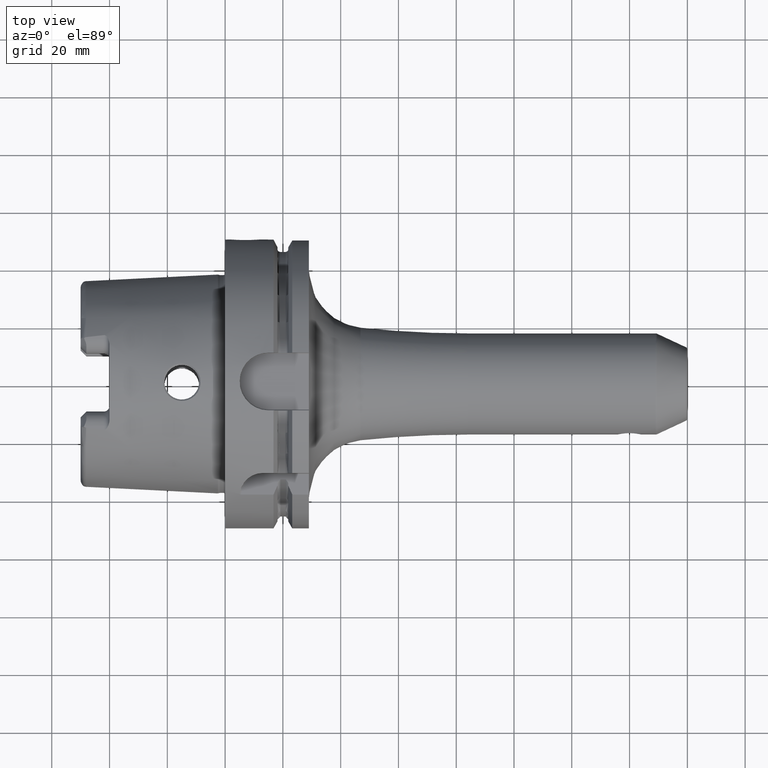
[diagram: clean part render]
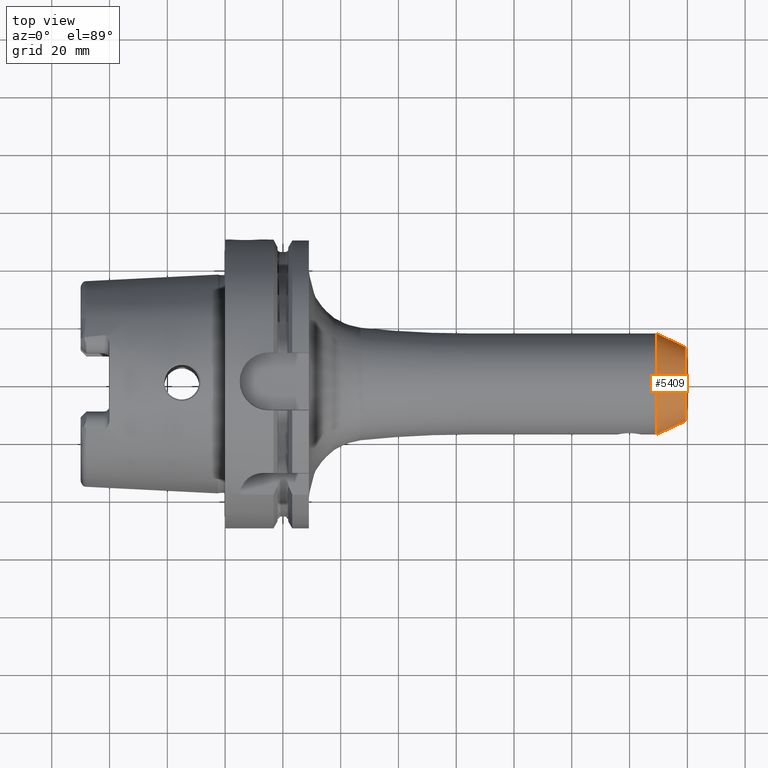
[diagram: same view with one face highlighted and labeled with its STEP entity id]
A machine part, top view. The second image highlights one B-rep face of the part: STEP entity #5409.
In plain terms, the highlighted conical surface has half-angle 25 deg.
Its self-contained STEP definition (entity closure, byte-faithful):
#2054=DIRECTION('',(-9.063077870367E-1,-4.226182617407E-1,-1.525668345675E-13));
#2055=VECTOR('',#2054,1.097224299231E1);
#2056=CARTESIAN_POINT('',(1.594226182617E2,-1.276923752623E1,
1.676400449014E-13));
#2057=LINE('',#2056,#2055);
#2063=DIRECTION('',(-9.063077870367E-1,4.226182617407E-1,1.519142186420E-13));
#2064=VECTOR('',#2063,1.097224299231E1);
#2065=CARTESIAN_POINT('',(1.594226182617E2,1.276923752623E1,
-1.680309900480E-13));
#2066=LINE('',#2065,#2064);
#2077=CARTESIAN_POINT('',(1.494783889965E2,0.E0,0.E0));
#2078=DIRECTION('',(-1.E0,0.E0,0.E0));
#2079=DIRECTION('',(0.E0,-1.E0,0.E0));
#2080=AXIS2_PLACEMENT_3D('',#2077,#2078,#2079);
#2082=CARTESIAN_POINT('',(1.594226182617E2,0.E0,0.E0));
#2083=DIRECTION('',(-1.E0,0.E0,0.E0));
#2084=DIRECTION('',(0.E0,-1.E0,0.E0));
#2085=AXIS2_PLACEMENT_3D('',#2082,#2083,#2084);
#3313=CARTESIAN_POINT('',(1.494783889965E2,1.740630778704E1,0.E0));
#3314=CARTESIAN_POINT('',(1.494783889965E2,-1.740630778704E1,0.E0));
#3315=VERTEX_POINT('',#3313);
#3316=VERTEX_POINT('',#3314);
#3317=CARTESIAN_POINT('',(1.594226182617E2,1.276923752623E1,0.E0));
#3318=CARTESIAN_POINT('',(1.594226182617E2,-1.276923752623E1,0.E0));
#3319=VERTEX_POINT('',#3317);
#3320=VERTEX_POINT('',#3318);
#5397=CARTESIAN_POINT('',(1.544505036291E2,0.E0,0.E0));
#5398=DIRECTION('',(-1.E0,0.E0,0.E0));
#5399=DIRECTION('',(0.E0,1.E0,0.E0));
#5400=AXIS2_PLACEMENT_3D('',#5397,#5398,#5399);
#5401=CONICAL_SURFACE('',#5400,1.508777265663E1,2.5E1);
#5402=ORIENTED_EDGE('',*,*,#5391,.T.);
#5403=ORIENTED_EDGE('',*,*,#5365,.F.);
#5405=ORIENTED_EDGE('',*,*,#5404,.F.);
#5406=ORIENTED_EDGE('',*,*,#5362,.T.);
#5407=EDGE_LOOP('',(#5402,#5403,#5405,#5406));
#5408=FACE_OUTER_BOUND('',#5407,.F.);
#5409=ADVANCED_FACE('',(#5408),#5401,.T.);
#2081=CIRCLE('',#2080,1.740630778704E1);
#2086=CIRCLE('',#2085,1.276923752623E1);
#5362=EDGE_CURVE('',#3320,#3316,#2057,.T.);
#5365=EDGE_CURVE('',#3319,#3315,#2066,.T.);
#5391=EDGE_CURVE('',#3316,#3315,#2081,.T.);
#5404=EDGE_CURVE('',#3320,#3319,#2086,.T.);